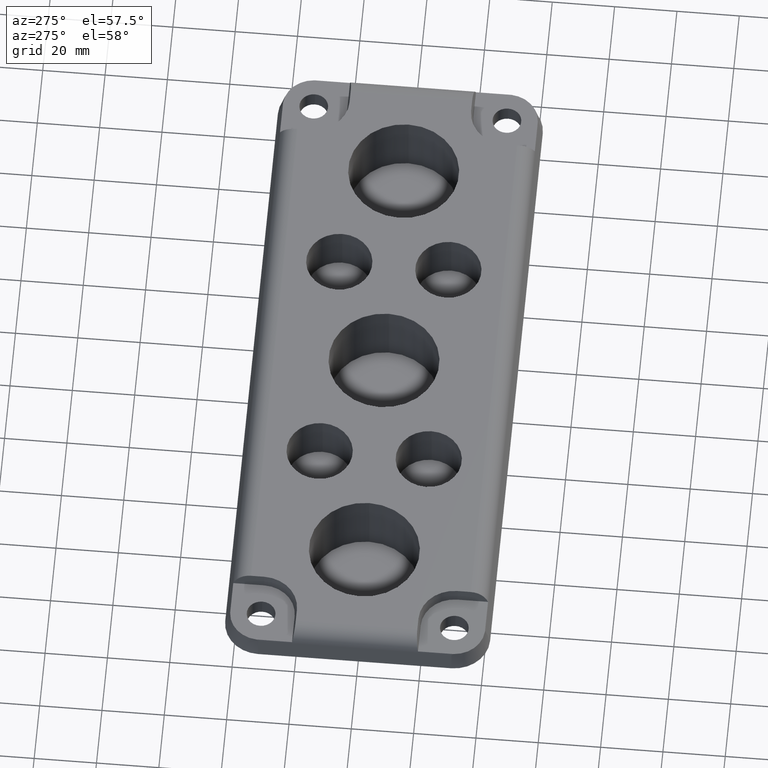
[diagram: clean part render]
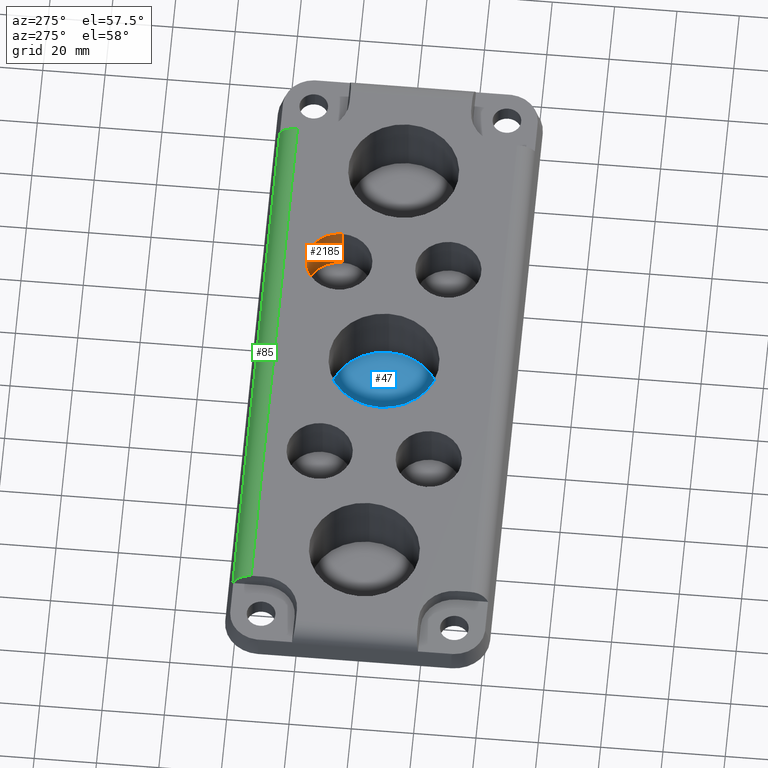
[diagram: same view with three faces highlighted in distinct colors, each labeled with its STEP entity id]
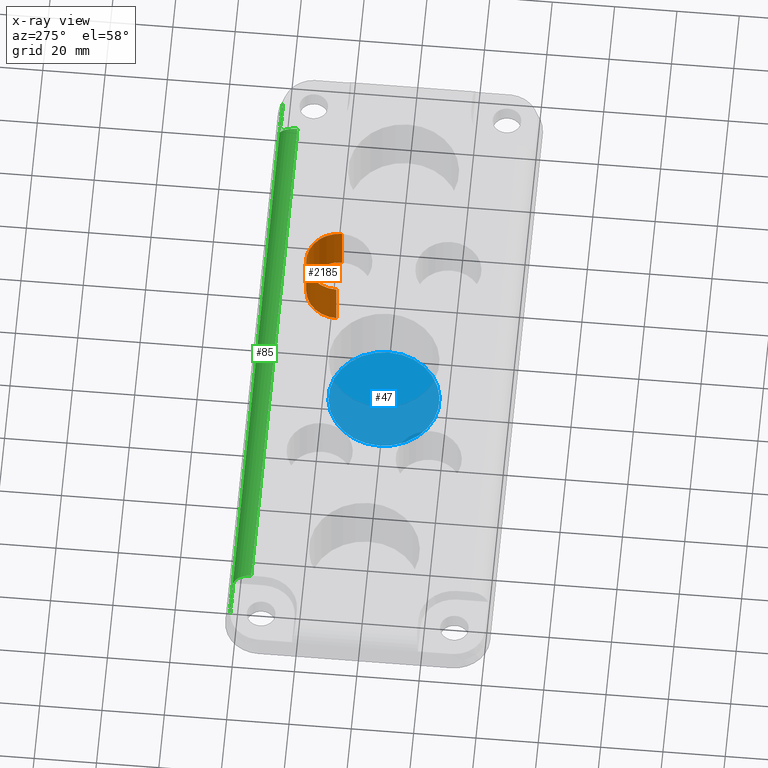
[diagram: x-ray of the same camera — body ghosted, the three highlighted faces saturated]
A machine part, auxiliary view with three faces highlighted in distinct colors.
The next image is the same camera in x-ray (body ghosted, the three faces saturated) — at least one of them is partly hidden behind the body in this view.
Their STEP definitions:

[orange] entity #2185 — the highlighted cylindrical surface (edge-blend (fillet) strip) has radius 10.6 mm, axis along (-0, -0, 1).
#124 = DIRECTION ( 'NONE',  ( 1.000000000000000000, 0.0000000000000000000, 0.0000000000000000000 ) ) ;
#247 = CIRCLE ( 'NONE', #1083, 10.59999999999999800 ) ;
#415 = CARTESIAN_POINT ( 'NONE',  ( 25.39999999999998400, 17.50000000000000700, 10.00000000000000000 ) ) ;
#510 = ORIENTED_EDGE ( 'NONE', *, *, #3304, .T. ) ;
#513 = ORIENTED_EDGE ( 'NONE', *, *, #1677, .F. ) ;
#549 = CIRCLE ( 'NONE', #1489, 10.59999999999999800 ) ;
#644 = CYLINDRICAL_SURFACE ( 'NONE', #950, 10.59999999999999800 ) ;
#649 = CARTESIAN_POINT ( 'NONE',  ( 25.39999999999998400, 17.50000000000000700, -7.000000000000000900 ) ) ;
#694 = VECTOR ( 'NONE', #1602, 1000.000000000000000 ) ;
#926 = DIRECTION ( 'NONE',  ( -0.0000000000000000000, -0.0000000000000000000, 1.000000000000000000 ) ) ;
#950 = AXIS2_PLACEMENT_3D ( 'NONE', #3543, #2687, #124 ) ;
#964 = ORIENTED_EDGE ( 'NONE', *, *, #2949, .F. ) ;
#1083 = AXIS2_PLACEMENT_3D ( 'NONE', #2685, #2696, #3285 ) ;
#1160 = VECTOR ( 'NONE', #926, 1000.000000000000000 ) ;
#1489 = AXIS2_PLACEMENT_3D ( 'NONE', #1808, #2061, #2648 ) ;
#1521 = CARTESIAN_POINT ( 'NONE',  ( 46.59999999999998000, 17.50000000000000700, -7.000000000000000900 ) ) ;
#1587 = VERTEX_POINT ( 'NONE', #1724 ) ;
#1602 = DIRECTION ( 'NONE',  ( -0.0000000000000000000, -0.0000000000000000000, 1.000000000000000000 ) ) ;
#1677 = EDGE_CURVE ( 'NONE', #2205, #3191, #3151, .T. ) ;
#1724 = CARTESIAN_POINT ( 'NONE',  ( 46.59999999999998000, 17.50000000000000700, 10.00000000000000000 ) ) ;
#1808 = CARTESIAN_POINT ( 'NONE',  ( 35.99999999999998600, 17.50000000000000700, -7.000000000000000900 ) ) ;
#1836 = FACE_OUTER_BOUND ( 'NONE', #2337, .T. ) ;
#2061 = DIRECTION ( 'NONE',  ( 0.0000000000000000000, 0.0000000000000000000, 1.000000000000000000 ) ) ;
#2170 = CARTESIAN_POINT ( 'NONE',  ( 46.59999999999998000, 17.50000000000000700, -7.000000000000000900 ) ) ;
#2176 = VERTEX_POINT ( 'NONE', #1521 ) ;
#2185 = ADVANCED_FACE ( 'NONE', ( #1836 ), #644, .F. ) ;
#2205 = VERTEX_POINT ( 'NONE', #2985 ) ;
#2337 = EDGE_LOOP ( 'NONE', ( #513, #964, #2877, #510 ) ) ;
#2526 = EDGE_CURVE ( 'NONE', #2176, #1587, #2778, .T. ) ;
#2648 = DIRECTION ( 'NONE',  ( 1.000000000000000000, 0.0000000000000000000, 0.0000000000000000000 ) ) ;
#2685 = CARTESIAN_POINT ( 'NONE',  ( 35.99999999999998600, 17.50000000000000700, 10.00000000000000000 ) ) ;
#2687 = DIRECTION ( 'NONE',  ( -0.0000000000000000000, -0.0000000000000000000, 1.000000000000000000 ) ) ;
#2696 = DIRECTION ( 'NONE',  ( 0.0000000000000000000, 0.0000000000000000000, 1.000000000000000000 ) ) ;
#2778 = LINE ( 'NONE', #2170, #694 ) ;
#2877 = ORIENTED_EDGE ( 'NONE', *, *, #2526, .T. ) ;
#2949 = EDGE_CURVE ( 'NONE', #2176, #2205, #549, .T. ) ;
#2985 = CARTESIAN_POINT ( 'NONE',  ( 25.39999999999998400, 17.50000000000000700, -7.000000000000000900 ) ) ;
#3151 = LINE ( 'NONE', #649, #1160 ) ;
#3191 = VERTEX_POINT ( 'NONE', #415 ) ;
#3285 = DIRECTION ( 'NONE',  ( 1.000000000000000000, 0.0000000000000000000, 0.0000000000000000000 ) ) ;
#3304 = EDGE_CURVE ( 'NONE', #1587, #3191, #247, .T. ) ;
#3543 = CARTESIAN_POINT ( 'NONE',  ( 35.99999999999998600, 17.50000000000000700, -7.000000000000000900 ) ) ;

[blue] entity #47 — the highlighted planar face has unit normal (0, 0, 1).
#47 = ADVANCED_FACE ( 'NONE', ( #477 ), #867, .T. ) ;
#50 = DIRECTION ( 'NONE',  ( 1.000000000000000000, 0.0000000000000000000, 0.0000000000000000000 ) ) ;
#93 = EDGE_CURVE ( 'NONE', #502, #349, #145, .T. ) ;
#145 = CIRCLE ( 'NONE', #3208, 17.75000000000000400 ) ;
#184 = CARTESIAN_POINT ( 'NONE',  ( -17.75000000000000400, 2.173748068486552000E-015, -13.00000000000000000 ) ) ;
#349 = VERTEX_POINT ( 'NONE', #184 ) ;
#477 = FACE_OUTER_BOUND ( 'NONE', #2776, .T. ) ;
#502 = VERTEX_POINT ( 'NONE', #1946 ) ;
#532 = EDGE_CURVE ( 'NONE', #349, #502, #3429, .T. ) ;
#675 = DIRECTION ( 'NONE',  ( 0.0000000000000000000, 0.0000000000000000000, 1.000000000000000000 ) ) ;
#688 = DIRECTION ( 'NONE',  ( 0.0000000000000000000, 0.0000000000000000000, 1.000000000000000000 ) ) ;
#867 = PLANE ( 'NONE',  #2069 ) ;
#1226 = CARTESIAN_POINT ( 'NONE',  ( 0.0000000000000000000, 0.0000000000000000000, -13.00000000000000000 ) ) ;
#1266 = ORIENTED_EDGE ( 'NONE', *, *, #93, .T. ) ;
#1781 = DIRECTION ( 'NONE',  ( 1.000000000000000000, 0.0000000000000000000, 0.0000000000000000000 ) ) ;
#1946 = CARTESIAN_POINT ( 'NONE',  ( 17.75000000000000400, 0.0000000000000000000, -13.00000000000000000 ) ) ;
#2069 = AXIS2_PLACEMENT_3D ( 'NONE', #2716, #688, #2329 ) ;
#2112 = ORIENTED_EDGE ( 'NONE', *, *, #532, .T. ) ;
#2242 = CARTESIAN_POINT ( 'NONE',  ( 0.0000000000000000000, 0.0000000000000000000, -13.00000000000000000 ) ) ;
#2329 = DIRECTION ( 'NONE',  ( 1.000000000000000000, 0.0000000000000000000, -0.0000000000000000000 ) ) ;
#2716 = CARTESIAN_POINT ( 'NONE',  ( 0.0000000000000000000, 0.0000000000000000000, -13.00000000000000000 ) ) ;
#2776 = EDGE_LOOP ( 'NONE', ( #1266, #2112 ) ) ;
#2835 = DIRECTION ( 'NONE',  ( 0.0000000000000000000, 0.0000000000000000000, 1.000000000000000000 ) ) ;
#3190 = AXIS2_PLACEMENT_3D ( 'NONE', #2242, #2835, #50 ) ;
#3208 = AXIS2_PLACEMENT_3D ( 'NONE', #1226, #675, #1781 ) ;
#3429 = CIRCLE ( 'NONE', #3190, 17.75000000000000400 ) ;

[green] entity #85 — the highlighted cylindrical surface (edge-blend (fillet) strip) has radius 6 mm, axis along (1, 0, 0).
#85 = ADVANCED_FACE ( 'NONE', ( #1218 ), #2473, .T. ) ;
#111 = VERTEX_POINT ( 'NONE', #946 ) ;
#152 =( BOUNDED_CURVE ( )  B_SPLINE_CURVE ( 3, ( #2413, #1046, #1324, #741 ),
 .UNSPECIFIED., .F., .F. ) 
 B_SPLINE_CURVE_WITH_KNOTS ( ( 4, 4 ),
 ( -7.105427357601001900E-015, 1.230959417340767900 ),
 .UNSPECIFIED. ) 
 CURVE ( )  GEOMETRIC_REPRESENTATION_ITEM ( )  RATIONAL_B_SPLINE_CURVE ( ( 1.000000000000000000, 0.8776643872851505000, 0.8776643872851505000, 1.000000000000000000 ) ) 
 REPRESENTATION_ITEM ( '' )  );
#154 = CARTESIAN_POINT ( 'NONE',  ( 96.90804496335557900, 40.92568026178082600, 5.852130213245402500 ) ) ;
#165 = CARTESIAN_POINT ( 'NONE',  ( 97.11127714584797800, 40.87340039730743500, 6.000000000000000000 ) ) ;
#175 = EDGE_CURVE ( 'NONE', #1715, #1139, #3077, .T. ) ;
#204 = CARTESIAN_POINT ( 'NONE',  ( -96.70423657696166200, 40.97187724264496500, 5.703031770651386400 ) ) ;
#205 = ORIENTED_EDGE ( 'NONE', *, *, #1542, .F. ) ;
#219 = ORIENTED_EDGE ( 'NONE', *, *, #2369, .F. ) ;
#269 = CARTESIAN_POINT ( 'NONE',  ( 97.11127714584797800, 40.87340039730743500, 6.000000000000000000 ) ) ;
#331 = AXIS2_PLACEMENT_3D ( 'NONE', #1236, #888, #413 ) ;
#406 = ORIENTED_EDGE ( 'NONE', *, *, #684, .F. ) ;
#413 = DIRECTION ( 'NONE',  ( 0.0000000000000000000, 0.0000000000000000000, -1.000000000000000000 ) ) ;
#450 = EDGE_LOOP ( 'NONE', ( #1812, #1569, #219, #2167, #406, #205, #736, #3449 ) ) ;
#479 = CARTESIAN_POINT ( 'NONE',  ( -97.11127714584797800, 40.87340039730743500, 6.000000000000000000 ) ) ;
#526 = VERTEX_POINT ( 'NONE', #1389 ) ;
#621 = EDGE_CURVE ( 'NONE', #1915, #526, #1909, .T. ) ;
#684 = EDGE_CURVE ( 'NONE', #111, #1122, #152, .T. ) ;
#736 = ORIENTED_EDGE ( 'NONE', *, *, #621, .F. ) ;
#741 = CARTESIAN_POINT ( 'NONE',  ( -85.70530792283388200, 40.87340039730743500, 6.000000000000000000 ) ) ;
#786 = DIRECTION ( 'NONE',  ( -1.000000000000000000, -0.0000000000000000000, -0.0000000000000000000 ) ) ;
#810 = EDGE_CURVE ( 'NONE', #1122, #1748, #2265, .T. ) ;
#866 = DIRECTION ( 'NONE',  ( -1.000000000000000000, -0.0000000000000000000, -0.0000000000000000000 ) ) ;
#888 = DIRECTION ( 'NONE',  ( 1.000000000000000000, 0.0000000000000000000, 0.0000000000000000000 ) ) ;
#903 = B_SPLINE_CURVE_WITH_KNOTS ( 'NONE', 3,
 ( #479, #1572, #204, #3521 ),
 .UNSPECIFIED., .F., .F.,
 ( 4, 4 ),
 ( 0.0000000000000000000, 0.0007699298614044585400 ),
 .UNSPECIFIED. ) ;
#946 = CARTESIAN_POINT ( 'NONE',  ( -85.00000000000002800, 35.21654614781505200, 10.00000000000000000 ) ) ;
#963 = LINE ( 'NONE', #3196, #2534 ) ;
#1046 = CARTESIAN_POINT ( 'NONE',  ( -85.00000000000004300, 37.84784930904060500, 10.00000000000000200 ) ) ;
#1059 = CARTESIAN_POINT ( 'NONE',  ( 84.99999999999998600, 35.21654614781505200, 10.00000000000000000 ) ) ;
#1122 = VERTEX_POINT ( 'NONE', #1628 ) ;
#1139 = VERTEX_POINT ( 'NONE', #3591 ) ;
#1206 = DIRECTION ( 'NONE',  ( 1.000000000000000000, -0.0000000000000000000, -0.0000000000000000000 ) ) ;
#1218 = FACE_OUTER_BOUND ( 'NONE', #450, .T. ) ;
#1236 = CARTESIAN_POINT ( 'NONE',  ( -96.50000000000000000, 35.21654614781505200, 4.000000000000000000 ) ) ;
#1302 = CARTESIAN_POINT ( 'NONE',  ( 85.00000000000000000, 37.84784930904060500, 10.00000000000000200 ) ) ;
#1324 = CARTESIAN_POINT ( 'NONE',  ( -85.26787305529379100, 39.99629934356558200, 8.480816411546916500 ) ) ;
#1330 = DIRECTION ( 'NONE',  ( -1.000000000000000000, -0.0000000000000000000, -0.0000000000000000000 ) ) ;
#1358 = EDGE_CURVE ( 'NONE', #2489, #1715, #963, .T. ) ;
#1389 = CARTESIAN_POINT ( 'NONE',  ( 84.99999999999998600, 35.21654614781505200, 10.00000000000000000 ) ) ;
#1542 = EDGE_CURVE ( 'NONE', #526, #111, #3309, .T. ) ;
#1569 = ORIENTED_EDGE ( 'NONE', *, *, #1358, .F. ) ;
#1572 = CARTESIAN_POINT ( 'NONE',  ( -96.90804496335556500, 40.92568026178084000, 5.852130213245372300 ) ) ;
#1599 = CARTESIAN_POINT ( 'NONE',  ( 85.70530792283385300, 40.87340039730743500, 6.000000000000000000 ) ) ;
#1628 = CARTESIAN_POINT ( 'NONE',  ( -85.70530792283388200, 40.87340039730743500, 6.000000000000000000 ) ) ;
#1680 = VECTOR ( 'NONE', #866, 1000.000000000000000 ) ;
#1695 = CARTESIAN_POINT ( 'NONE',  ( -96.50000000000000000, 35.21654614781505200, 10.00000000000000000 ) ) ;
#1715 = VERTEX_POINT ( 'NONE', #3465 ) ;
#1748 = VERTEX_POINT ( 'NONE', #2187 ) ;
#1800 = CARTESIAN_POINT ( 'NONE',  ( 96.70423657696213100, 40.97187724264510000, 5.703031770650877500 ) ) ;
#1812 = ORIENTED_EDGE ( 'NONE', *, *, #175, .F. ) ;
#1909 =( BOUNDED_CURVE ( )  B_SPLINE_CURVE ( 3, ( #1599, #3545, #1302, #1059 ),
 .UNSPECIFIED., .F., .F. ) 
 B_SPLINE_CURVE_WITH_KNOTS ( ( 4, 4 ),
 ( 1.910633236249025700, 3.141592653589799800 ),
 .UNSPECIFIED. ) 
 CURVE ( )  GEOMETRIC_REPRESENTATION_ITEM ( )  RATIONAL_B_SPLINE_CURVE ( ( 1.000000000000000000, 0.8776643872851508400, 0.8776643872851508400, 1.000000000000000000 ) ) 
 REPRESENTATION_ITEM ( '' )  );
#1915 = VERTEX_POINT ( 'NONE', #3159 ) ;
#2160 = VECTOR ( 'NONE', #786, 1000.000000000000000 ) ;
#2167 = ORIENTED_EDGE ( 'NONE', *, *, #810, .F. ) ;
#2187 = CARTESIAN_POINT ( 'NONE',  ( -97.11127714584797800, 40.87340039730743500, 6.000000000000000000 ) ) ;
#2265 = LINE ( 'NONE', #2459, #2160 ) ;
#2369 = EDGE_CURVE ( 'NONE', #1748, #2489, #903, .T. ) ;
#2413 = CARTESIAN_POINT ( 'NONE',  ( -85.00000000000002800, 35.21654614781505200, 10.00000000000000000 ) ) ;
#2459 = CARTESIAN_POINT ( 'NONE',  ( -85.70530792283389600, 40.87340039730743500, 6.000000000000000000 ) ) ;
#2473 = CYLINDRICAL_SURFACE ( 'NONE', #331, 6.000000000000000000 ) ;
#2489 = VERTEX_POINT ( 'NONE', #3330 ) ;
#2534 = VECTOR ( 'NONE', #1206, 1000.000000000000000 ) ;
#2592 = VECTOR ( 'NONE', #1330, 1000.000000000000000 ) ;
#3077 = B_SPLINE_CURVE_WITH_KNOTS ( 'NONE', 3,
 ( #3510, #1800, #154, #165 ),
 .UNSPECIFIED., .F., .F.,
 ( 4, 4 ),
 ( -2.036201744877474100E-005, 0.0007495678439556068200 ),
 .UNSPECIFIED. ) ;
#3139 = LINE ( 'NONE', #269, #2592 ) ;
#3159 = CARTESIAN_POINT ( 'NONE',  ( 85.70530792283385300, 40.87340039730743500, 6.000000000000000000 ) ) ;
#3196 = CARTESIAN_POINT ( 'NONE',  ( -96.49999999999997200, 41.01210110554946200, 5.552914270615127100 ) ) ;
#3309 = LINE ( 'NONE', #1695, #1680 ) ;
#3330 = CARTESIAN_POINT ( 'NONE',  ( -96.49999999999997200, 41.01210110554941900, 5.552914270615116400 ) ) ;
#3410 = EDGE_CURVE ( 'NONE', #1139, #1915, #3139, .T. ) ;
#3449 = ORIENTED_EDGE ( 'NONE', *, *, #3410, .F. ) ;
#3465 = CARTESIAN_POINT ( 'NONE',  ( 96.49999999999997200, 41.01210110554946200, 5.552914270615127100 ) ) ;
#3510 = CARTESIAN_POINT ( 'NONE',  ( 96.49999999999997200, 41.01210110554946200, 5.552914270615127100 ) ) ;
#3521 = CARTESIAN_POINT ( 'NONE',  ( -96.49999999999997200, 41.01210110554941900, 5.552914270615116400 ) ) ;
#3545 = CARTESIAN_POINT ( 'NONE',  ( 85.26787305529377600, 39.99629934356558200, 8.480816411546914700 ) ) ;
#3591 = CARTESIAN_POINT ( 'NONE',  ( 97.11127714584797800, 40.87340039730743500, 6.000000000000000000 ) ) ;